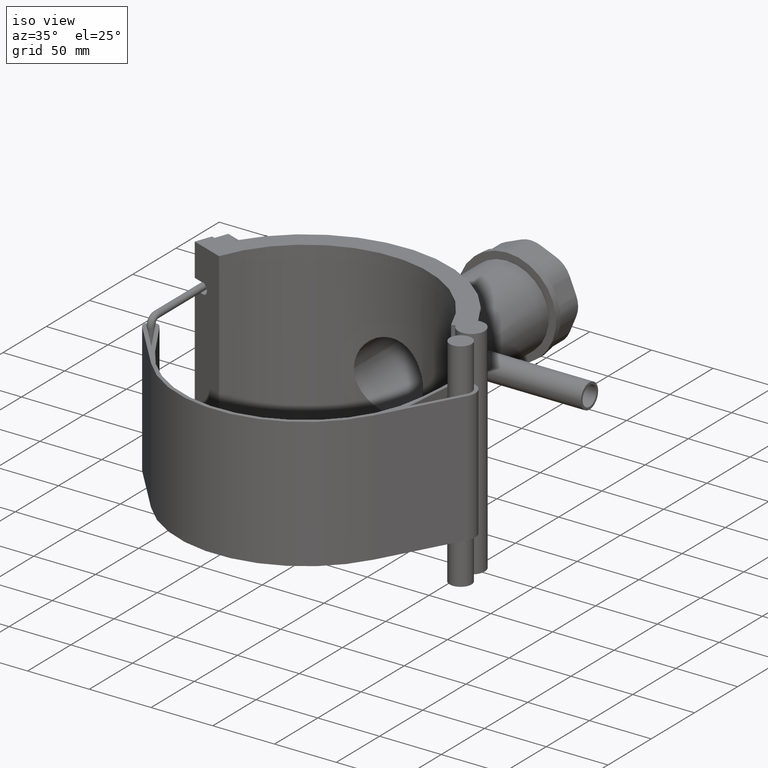
[diagram: clean part render]
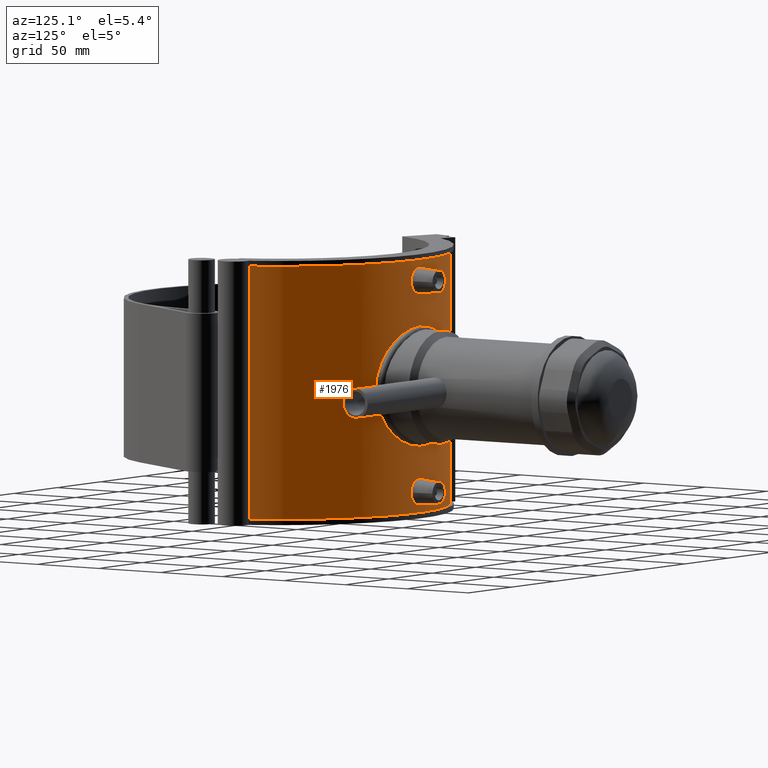
[diagram: tour spotlight — one face highlighted and labeled with its STEP entity id]
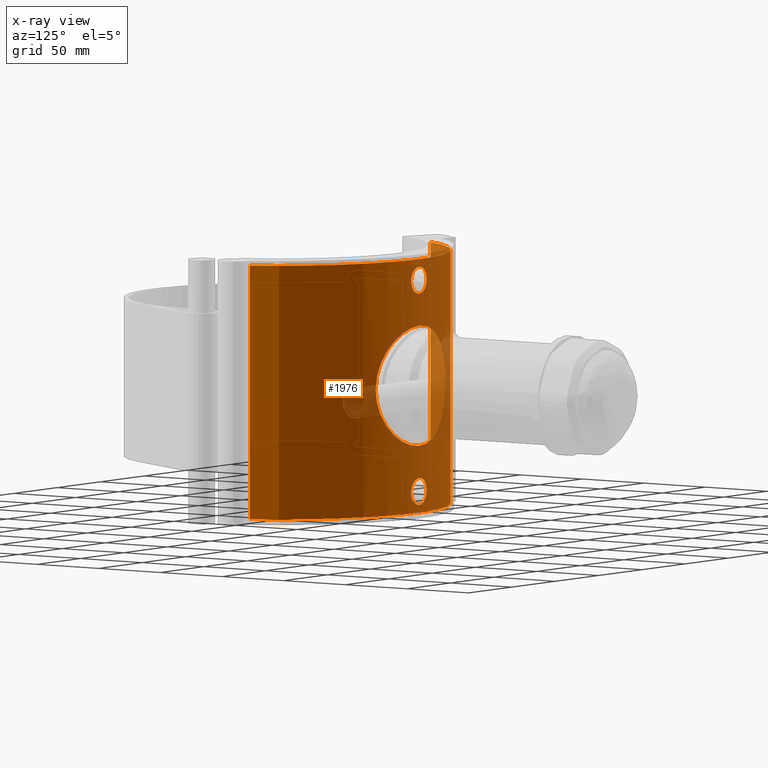
[diagram: x-ray of the same camera — body ghosted, this tour face saturated]
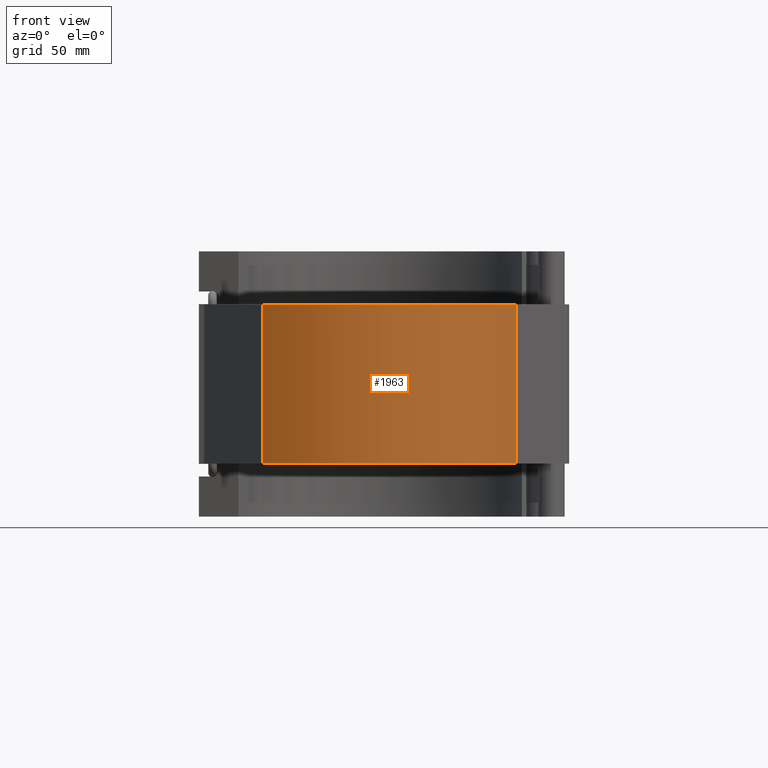
[diagram: tour spotlight — one face highlighted and labeled with its STEP entity id]
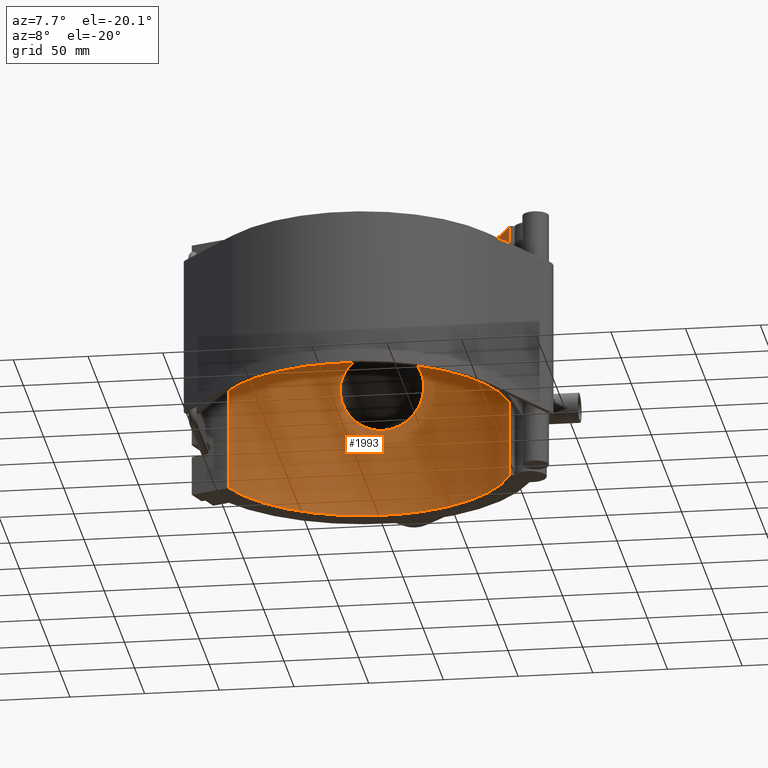
[diagram: tour spotlight — one face highlighted and labeled with its STEP entity id]
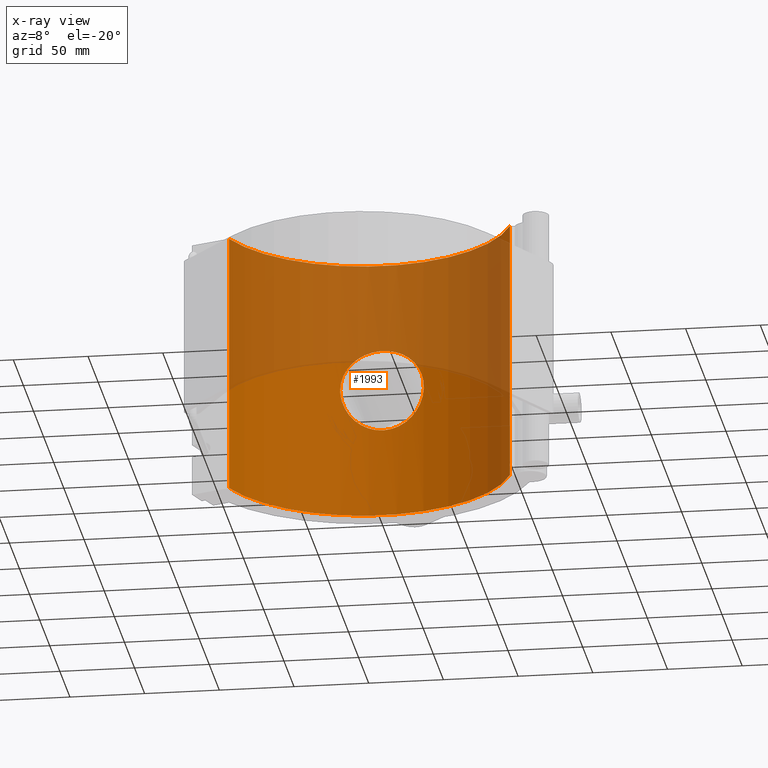
[diagram: x-ray of the same camera — body ghosted, this tour face saturated]
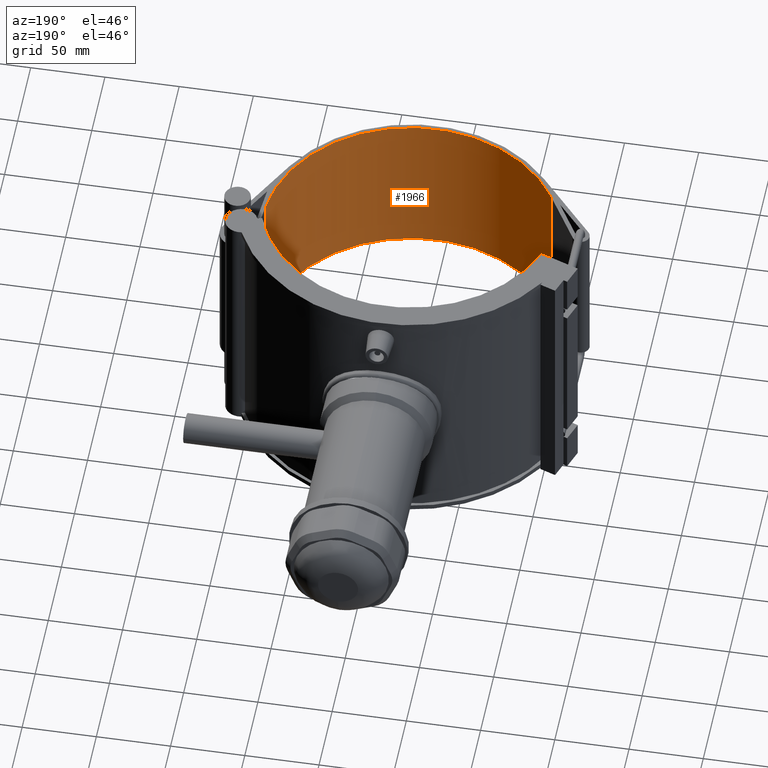
[diagram: tour spotlight — one face highlighted and labeled with its STEP entity id]
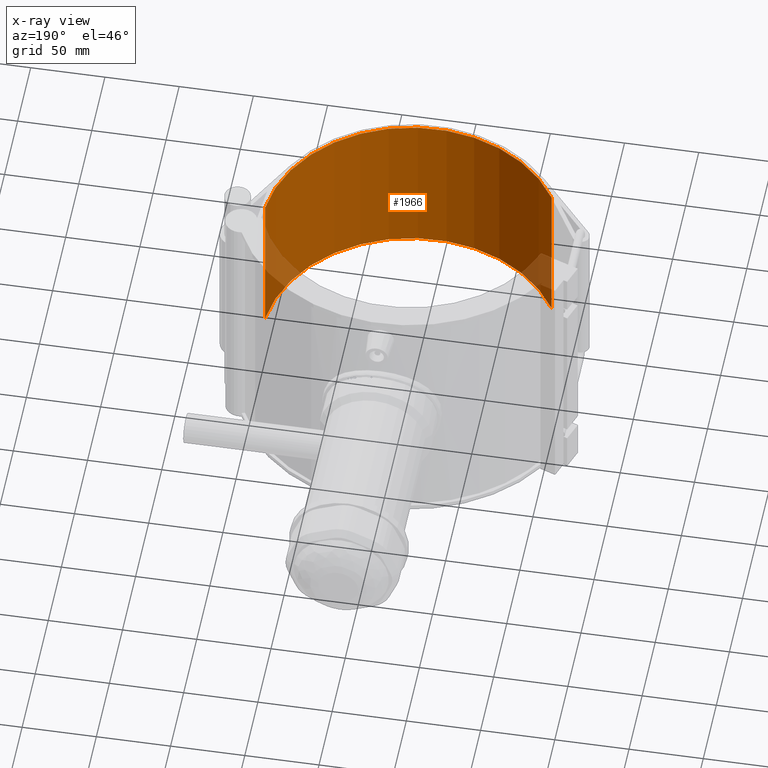
[diagram: x-ray of the same camera — body ghosted, this tour face saturated]
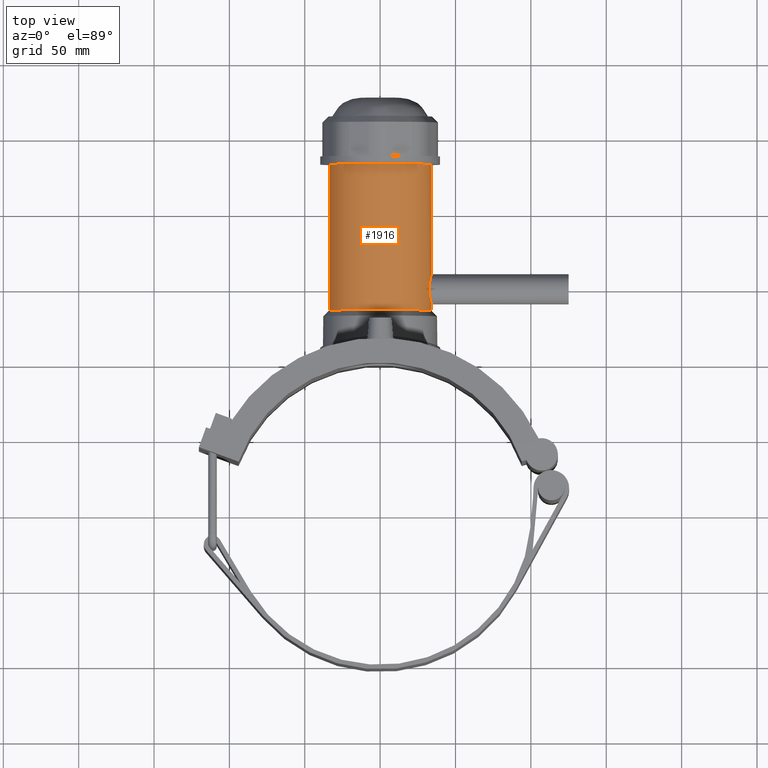
[diagram: tour spotlight — one face highlighted and labeled with its STEP entity id]
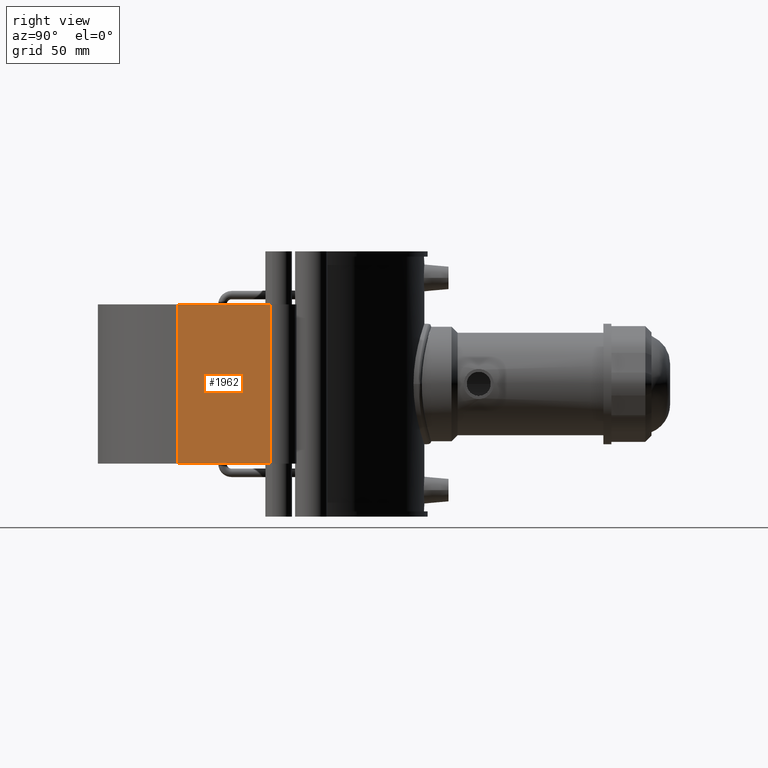
[diagram: tour spotlight — one face highlighted and labeled with its STEP entity id]
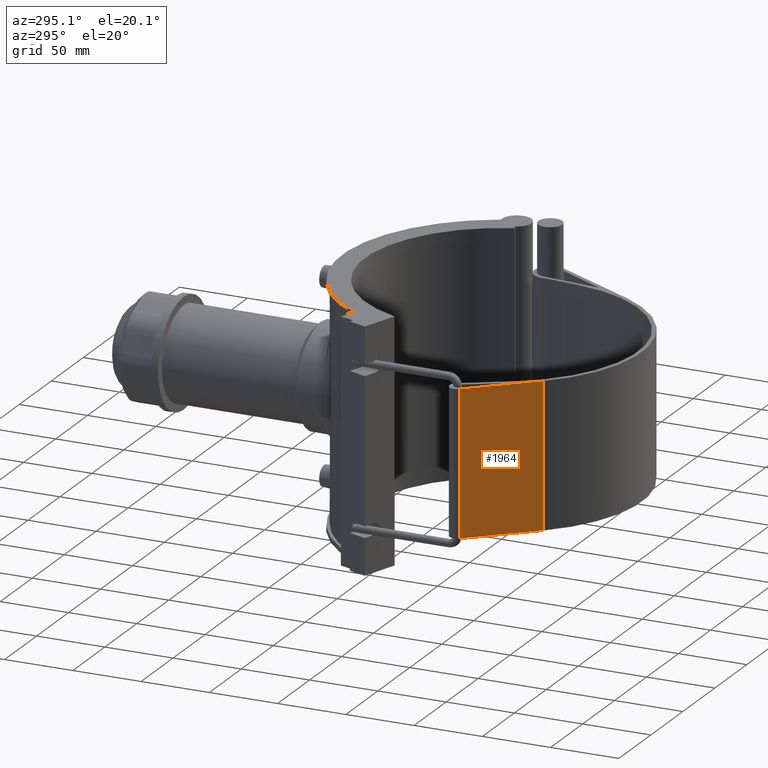
[diagram: tour spotlight — one face highlighted and labeled with its STEP entity id]
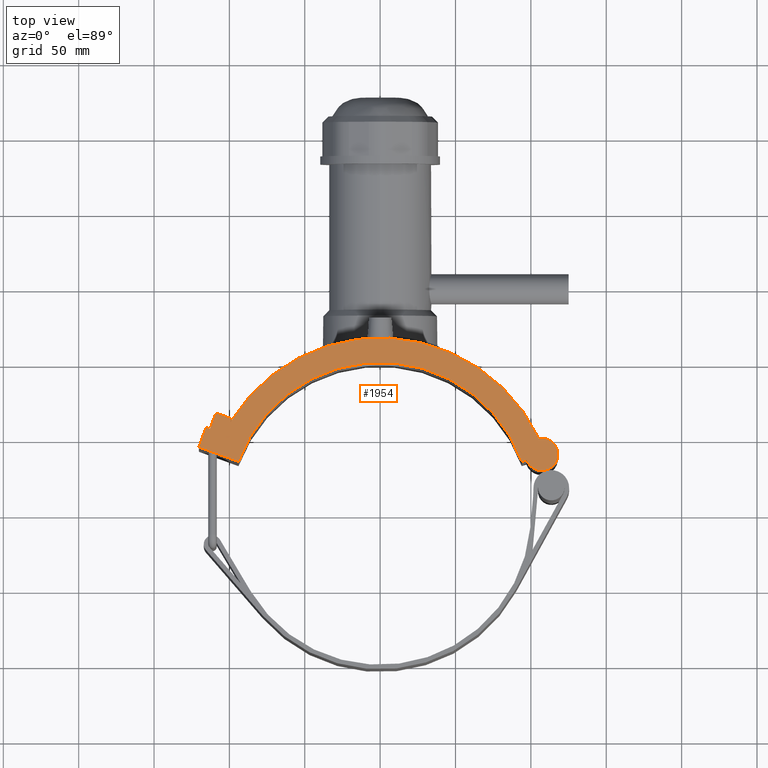
[diagram: tour spotlight — one face highlighted and labeled with its STEP entity id]
A machine part: a face-by-face anatomy tour. The part has 121 B-rep faces; the first image is the clean iso view, then the 8 largest visible faces are spotlighted one at a time (largest first), each with its STEP entity span.

Face 1 — auxiliary view, entity #1976. An x-ray twin of the same camera follows (body ghosted, this face saturated) — the face is partly hidden behind the body. In plain terms, the highlighted cylindrical surface (partial cylindrical patch) has radius 114 mm, axis along (0, 0, 1).
Definition (entity closure, byte-faithful):
#159=LINE('',#3481,#320);
#197=LINE('',#3574,#358);
#320=VECTOR('',#2616,168.96);
#358=VECTOR('',#2720,168.96);
#385=FACE_BOUND('',#701,.T.);
#386=FACE_BOUND('',#702,.T.);
#387=FACE_BOUND('',#703,.T.);
#410=B_SPLINE_CURVE_WITH_KNOTS('',3,(#3587,#3588,#3589,#3590,#3591,#3592,
#3593,#3594,#3595,#3596,#3597,#3598,#3599,#3600,#3601,#3602,#3603,#3604,
#3605,#3606,#3607,#3608,#3609,#3610,#3611,#3612,#3613,#3614,#3615,#3616,
#3617,#3618,#3619,#3620,#3621,#3622,#3623,#3624,#3625,#3626,#3627,#3628,
#3629,#3630,#3631,#3632,#3633,#3634,#3635,#3636,#3637,#3638,#3639,#3640,
#3641,#3642,#3643,#3644,#3645,#3646,#3647,#3648,#3649,#3650,#3651,#3652),
 .UNSPECIFIED.,.T.,.F.,(4,2,2,2,2,2,2,2,2,2,2,2,2,2,2,2,2,2,2,2,2,2,2,2,
2,2,2,2,2,2,2,2,4),(0.,0.760647952222609,1.52129590444522,2.28194385666783,
3.04259180889044,3.8028012971106,4.56301078533076,5.32322027355092,6.08342976177108,
6.84363924999124,7.60384873821141,8.36405822643157,9.12426771465173,9.88491566687434,
10.6455636190969,11.4062115713196,12.1668595235422,12.9275074757648,13.6881554279874,
14.44880338021,15.2094513324326,15.9696608206528,16.7298703088729,17.4900797970931,
18.2502892853133,19.0104987735334,19.7707082617536,20.5309177499737,21.2911272381939,
22.0517751904165,22.8124231426391,23.5730710948617,24.3337190470843),
 .UNSPECIFIED.);
#411=B_SPLINE_CURVE_WITH_KNOTS('',3,(#3654,#3655,#3656,#3657,#3658,#3659,
#3660,#3661,#3662,#3663,#3664,#3665,#3666,#3667,#3668,#3669,#3670,#3671,
#3672,#3673,#3674,#3675,#3676,#3677,#3678,#3679,#3680,#3681,#3682,#3683,
#3684,#3685,#3686,#3687),.UNSPECIFIED.,.T.,.F.,(4,2,2,2,2,2,2,2,2,2,2,2,
2,2,2,2,4),(0.,0.336102137266977,0.672204274533955,1.00804160752224,1.34387894051053,
1.67971627349881,2.0155536064871,2.35165574375408,2.68775788102105,3.02386001828803,
3.35996215555501,3.69579948854329,4.03163682153158,4.36747415451987,4.70331148750815,
5.03941362477513,5.37551576204211),.UNSPECIFIED.);
#412=B_SPLINE_CURVE_WITH_KNOTS('',3,(#3689,#3690,#3691,#3692,#3693,#3694,
#3695,#3696,#3697,#3698,#3699,#3700,#3701,#3702,#3703,#3704,#3705,#3706,
#3707,#3708,#3709,#3710,#3711,#3712,#3713,#3714,#3715,#3716,#3717,#3718,
#3719,#3720,#3721,#3722),.UNSPECIFIED.,.T.,.F.,(4,2,2,2,2,2,2,2,2,2,2,2,
2,2,2,2,4),(0.,0.336102137266977,0.672204274533955,1.00804160752224,1.34387894051053,
1.67971627349881,2.0155536064871,2.35165574375408,2.68775788102105,3.02386001828803,
3.35996215555501,3.69579948854329,4.03163682153158,4.36747415451987,4.70331148750815,
5.03941362477513,5.37551576204211),.UNSPECIFIED.);
#444=CYLINDRICAL_SURFACE('',#2178,114.);
#555=FACE_OUTER_BOUND('',#700,.T.);
#700=EDGE_LOOP('',(#1754,#1755,#1756,#1757));
#701=EDGE_LOOP('',(#1758));
#702=EDGE_LOOP('',(#1759));
#703=EDGE_LOOP('',(#1760));
#804=CIRCLE('',#2177,114.);
#805=CIRCLE('',#2179,114.);
#956=VERTEX_POINT('',#3477);
#958=VERTEX_POINT('',#3480);
#979=VERTEX_POINT('',#3571);
#980=VERTEX_POINT('',#3573);
#982=VERTEX_POINT('',#3586);
#983=VERTEX_POINT('',#3653);
#984=VERTEX_POINT('',#3688);
#1195=EDGE_CURVE('',#958,#956,#159,.T.);
#1242=EDGE_CURVE('',#980,#979,#197,.T.);
#1247=EDGE_CURVE('',#956,#980,#804,.T.);
#1248=EDGE_CURVE('',#979,#958,#805,.T.);
#1249=EDGE_CURVE('',#982,#982,#410,.T.);
#1250=EDGE_CURVE('',#983,#983,#411,.T.);
#1251=EDGE_CURVE('',#984,#984,#412,.T.);
#1754=ORIENTED_EDGE('',*,*,#1195,.T.);
#1755=ORIENTED_EDGE('',*,*,#1247,.T.);
#1756=ORIENTED_EDGE('',*,*,#1242,.T.);
#1757=ORIENTED_EDGE('',*,*,#1248,.T.);
#1758=ORIENTED_EDGE('',*,*,#1249,.T.);
#1759=ORIENTED_EDGE('',*,*,#1250,.T.);
#1760=ORIENTED_EDGE('',*,*,#1251,.T.);
#1976=ADVANCED_FACE('',(#555,#385,#386,#387),#444,.T.);
#2177=AXIS2_PLACEMENT_3D('',#3583,#2733,#2734);
#2178=AXIS2_PLACEMENT_3D('',#3584,#2735,#2736);
#2179=AXIS2_PLACEMENT_3D('',#3585,#2737,#2738);
#2616=DIRECTION('',(0.,0.,1.));
#2720=DIRECTION('',(0.,0.,-1.));
#2733=DIRECTION('center_axis',(0.,0.,-1.));
#2734=DIRECTION('ref_axis',(1.,0.,0.));
#2735=DIRECTION('center_axis',(0.,0.,1.));
#2736=DIRECTION('ref_axis',(1.,0.,0.));
#2737=DIRECTION('center_axis',(0.,0.,1.));
#2738=DIRECTION('ref_axis',(1.,0.,0.));
#3477=CARTESIAN_POINT('',(-101.525801895629,51.8508587146788,84.48));
#3480=CARTESIAN_POINT('',(-101.525801895629,51.8508587146788,-84.48));
#3481=CARTESIAN_POINT('',(-101.525801895629,51.8508587146788,0.));
#3571=CARTESIAN_POINT('',(102.967784249054,48.9247933755505,-84.48));
#3573=CARTESIAN_POINT('',(102.967784249054,48.9247933755505,84.48));
#3574=CARTESIAN_POINT('',(102.967784249054,48.9247933755505,0.));
#3583=CARTESIAN_POINT('Origin',(0.,0.,84.48));
#3584=CARTESIAN_POINT('Origin',(0.,0.,0.));
#3585=CARTESIAN_POINT('Origin',(0.,0.,-84.48));
#3586=CARTESIAN_POINT('',(40.,106.75204916066,1.88737914186277E-14));
#3587=CARTESIAN_POINT('Ctrl Pts',(40.,106.75204916066,1.11022302462516E-15));
#3588=CARTESIAN_POINT('Ctrl Pts',(40.,106.75204916066,2.53549317407536));
#3589=CARTESIAN_POINT('Ctrl Pts',(39.7550475114249,106.84490201709,5.14984591547766));
#3590=CARTESIAN_POINT('Ctrl Pts',(38.7319004507554,107.220039062905,10.3355988499144));
#3591=CARTESIAN_POINT('Ctrl Pts',(37.9540105848973,107.50192514406,12.9070879479991));
#3592=CARTESIAN_POINT('Ctrl Pts',(35.9066696708571,108.202965649266,17.8272562317298));
#3593=CARTESIAN_POINT('Ctrl Pts',(34.6355950394345,108.62190697547,20.1802659544724));
#3594=CARTESIAN_POINT('Ctrl Pts',(31.7066118951435,109.51271104526,24.5266862906721));
#3595=CARTESIAN_POINT('Ctrl Pts',(30.0484387987044,109.983670443605,26.5201036962194));
#3596=CARTESIAN_POINT('Ctrl Pts',(26.5211206239101,110.887072181654,30.0474218710137));
#3597=CARTESIAN_POINT('Ctrl Pts',(24.528186355914,111.35205607136,31.7054707704956));
#3598=CARTESIAN_POINT('Ctrl Pts',(20.1814991468893,112.221296594472,34.6348941835836));
#3599=CARTESIAN_POINT('Ctrl Pts',(17.8277385696762,112.624773108677,35.90648879335));
#3600=CARTESIAN_POINT('Ctrl Pts',(12.9060682572406,113.294312224824,37.9544150592687));
#3601=CARTESIAN_POINT('Ctrl Pts',(10.333850272777,113.560408092164,38.7323733018653));
#3602=CARTESIAN_POINT('Ctrl Pts',(5.14786790468786,113.913362708501,39.7553098227726));
#3603=CARTESIAN_POINT('Ctrl Pts',(2.53403162740054,114.,40.));
#3604=CARTESIAN_POINT('Ctrl Pts',(-2.53403162740054,114.,40.));
#3605=CARTESIAN_POINT('Ctrl Pts',(-5.14786790468785,113.913362708501,39.7553098227726));
#3606=CARTESIAN_POINT('Ctrl Pts',(-10.333850272777,113.560408092164,38.7323733018653));
#3607=CARTESIAN_POINT('Ctrl Pts',(-12.9060682572405,113.294312224824,37.9544150592687));
#3608=CARTESIAN_POINT('Ctrl Pts',(-17.8277385696762,112.624773108677,35.90648879335));
#3609=CARTESIAN_POINT('Ctrl Pts',(-20.1814991468893,112.221296594472,34.6348941835836));
#3610=CARTESIAN_POINT('Ctrl Pts',(-24.528186355914,111.35205607136,31.7054707704956));
#3611=CARTESIAN_POINT('Ctrl Pts',(-26.5211206239101,110.887072181654,30.0474218710137));
#3612=CARTESIAN_POINT('Ctrl Pts',(-30.0484387987044,109.983670443605,26.5201036962194));
#3613=CARTESIAN_POINT('Ctrl Pts',(-31.7066118951435,109.51271104526,24.5266862906721));
#3614=CARTESIAN_POINT('Ctrl Pts',(-34.6355950394345,108.62190697547,20.1802659544724));
#3615=CARTESIAN_POINT('Ctrl Pts',(-35.9066696708571,108.202965649266,17.8272562317298));
#3616=CARTESIAN_POINT('Ctrl Pts',(-37.9540105848973,107.50192514406,12.9070879479991));
#3617=CARTESIAN_POINT('Ctrl Pts',(-38.7319004507554,107.220039062905,10.3355988499144));
#3618=CARTESIAN_POINT('Ctrl Pts',(-39.7550475114249,106.84490201709,5.14984591547766));
#3619=CARTESIAN_POINT('Ctrl Pts',(-40.,106.75204916066,2.53549317407536));
#3620=CARTESIAN_POINT('Ctrl Pts',(-40.,106.75204916066,-2.53549317407536));
#3621=CARTESIAN_POINT('Ctrl Pts',(-39.7550475114249,106.84490201709,-5.14984591547766));
#3622=CARTESIAN_POINT('Ctrl Pts',(-38.7319004507554,107.220039062905,-10.3355988499144));
#3623=CARTESIAN_POINT('Ctrl Pts',(-37.9540105848973,107.50192514406,-12.9070879479991));
#3624=CARTESIAN_POINT('Ctrl Pts',(-35.9066696708571,108.202965649266,-17.8272562317298));
#3625=CARTESIAN_POINT('Ctrl Pts',(-34.6355950394345,108.62190697547,-20.1802659544724));
#3626=CARTESIAN_POINT('Ctrl Pts',(-31.7066118951435,109.51271104526,-24.5266862906721));
#3627=CARTESIAN_POINT('Ctrl Pts',(-30.0484387987044,109.983670443605,-26.5201036962194));
#3628=CARTESIAN_POINT('Ctrl Pts',(-26.5211206239101,110.887072181654,-30.0474218710137));
#3629=CARTESIAN_POINT('Ctrl Pts',(-24.528186355914,111.35205607136,-31.7054707704956));
#3630=CARTESIAN_POINT('Ctrl Pts',(-20.1814991468894,112.221296594472,-34.6348941835836));
#3631=CARTESIAN_POINT('Ctrl Pts',(-17.8277385696762,112.624773108677,-35.90648879335));
#3632=CARTESIAN_POINT('Ctrl Pts',(-12.9060682572406,113.294312224824,-37.9544150592687));
#3633=CARTESIAN_POINT('Ctrl Pts',(-10.333850272777,113.560408092164,-38.7323733018653));
#3634=CARTESIAN_POINT('Ctrl Pts',(-5.14786790468787,113.913362708501,-39.7553098227725));
#3635=CARTESIAN_POINT('Ctrl Pts',(-2.53403162740055,114.,-40.));
#3636=CARTESIAN_POINT('Ctrl Pts',(2.53403162740053,114.,-40.));
#3637=CARTESIAN_POINT('Ctrl Pts',(5.14786790468786,113.913362708501,-39.7553098227725));
#3638=CARTESIAN_POINT('Ctrl Pts',(10.333850272777,113.560408092164,-38.7323733018653));
#3639=CARTESIAN_POINT('Ctrl Pts',(12.9060682572406,113.294312224824,-37.9544150592687));
#3640=CARTESIAN_POINT('Ctrl Pts',(17.8277385696762,112.624773108677,-35.90648879335));
#3641=CARTESIAN_POINT('Ctrl Pts',(20.1814991468894,112.221296594472,-34.6348941835836));
#3642=CARTESIAN_POINT('Ctrl Pts',(24.528186355914,111.35205607136,-31.7054707704956));
#3643=CARTESIAN_POINT('Ctrl Pts',(26.5211206239101,110.887072181654,-30.0474218710137));
#3644=CARTESIAN_POINT('Ctrl Pts',(30.0484387987044,109.983670443605,-26.5201036962194));
#3645=CARTESIAN_POINT('Ctrl Pts',(31.7066118951435,109.51271104526,-24.5266862906722));
#3646=CARTESIAN_POINT('Ctrl Pts',(34.6355950394345,108.62190697547,-20.1802659544724));
#3647=CARTESIAN_POINT('Ctrl Pts',(35.9066696708571,108.202965649266,-17.8272562317298));
#3648=CARTESIAN_POINT('Ctrl Pts',(37.9540105848973,107.50192514406,-12.9070879479991));
#3649=CARTESIAN_POINT('Ctrl Pts',(38.7319004507554,107.220039062905,-10.3355988499144));
#3650=CARTESIAN_POINT('Ctrl Pts',(39.7550475114249,106.84490201709,-5.14984591547766));
#3651=CARTESIAN_POINT('Ctrl Pts',(40.,106.75204916066,-2.53549317407536));
#3652=CARTESIAN_POINT('Ctrl Pts',(40.,106.75204916066,5.55111512312578E-16));
#3653=CARTESIAN_POINT('',(8.93046881410949,113.64966663726,-70.4));
#3654=CARTESIAN_POINT('Ctrl Pts',(8.93046881410949,113.64966663726,-70.4));
#3655=CARTESIAN_POINT('Ctrl Pts',(8.93046881410949,113.64966663726,-69.2796595424434));
#3656=CARTESIAN_POINT('Ctrl Pts',(8.70520683363362,113.668066985588,-68.0854140294805));
#3657=CARTESIAN_POINT('Ctrl Pts',(7.79092480084932,113.734390435385,-65.8904724180335));
#3658=CARTESIAN_POINT('Ctrl Pts',(7.10195358693505,113.781344108194,-64.8897267912334));
#3659=CARTESIAN_POINT('Ctrl Pts',(5.51503165010171,113.869291041196,-63.311550554805));
#3660=CARTESIAN_POINT('Ctrl Pts',(4.51143713823414,113.916002250275,-62.6284379526399));
#3661=CARTESIAN_POINT('Ctrl Pts',(2.31366496396978,113.981821305138,-61.7227511867393));
#3662=CARTESIAN_POINT('Ctrl Pts',(1.11945777662762,114.,-61.5001813835852));
#3663=CARTESIAN_POINT('Ctrl Pts',(-1.11945777662762,114.,-61.5001813835852));
#3664=CARTESIAN_POINT('Ctrl Pts',(-2.31366496396977,113.981821305138,-61.7227511867393));
#3665=CARTESIAN_POINT('Ctrl Pts',(-4.51143713823413,113.916002250275,-62.6284379526399));
#3666=CARTESIAN_POINT('Ctrl Pts',(-5.5150316501017,113.869291041196,-63.311550554805));
#3667=CARTESIAN_POINT('Ctrl Pts',(-7.10195358693504,113.781344108194,-64.8897267912334));
#3668=CARTESIAN_POINT('Ctrl Pts',(-7.79092480084932,113.734390435385,-65.8904724180335));
#3669=CARTESIAN_POINT('Ctrl Pts',(-8.70520683363362,113.668066985588,-68.0854140294805));
#3670=CARTESIAN_POINT('Ctrl Pts',(-8.93046881410949,113.649666637259,-69.2796595424434));
#3671=CARTESIAN_POINT('Ctrl Pts',(-8.93046881410949,113.649666637259,-71.5203404575566));
#3672=CARTESIAN_POINT('Ctrl Pts',(-8.70520683363362,113.668066985588,-72.7145859705195));
#3673=CARTESIAN_POINT('Ctrl Pts',(-7.79092480084932,113.734390435385,-74.9095275819665));
#3674=CARTESIAN_POINT('Ctrl Pts',(-7.10195358693505,113.781344108194,-75.9102732087666));
#3675=CARTESIAN_POINT('Ctrl Pts',(-5.51503165010171,113.869291041196,-77.4884494451951));
#3676=CARTESIAN_POINT('Ctrl Pts',(-4.51143713823414,113.916002250275,-78.1715620473602));
#3677=CARTESIAN_POINT('Ctrl Pts',(-2.31366496396977,113.981821305138,-79.0772488132608));
#3678=CARTESIAN_POINT('Ctrl Pts',(-1.11945777662762,114.,-79.2998186164148));
#3679=CARTESIAN_POINT('Ctrl Pts',(1.11945777662762,114.,-79.2998186164148));
#3680=CARTESIAN_POINT('Ctrl Pts',(2.31366496396977,113.981821305138,-79.0772488132608));
#3681=CARTESIAN_POINT('Ctrl Pts',(4.51143713823413,113.916002250275,-78.1715620473602));
#3682=CARTESIAN_POINT('Ctrl Pts',(5.5150316501017,113.869291041196,-77.4884494451951));
#3683=CARTESIAN_POINT('Ctrl Pts',(7.10195358693505,113.781344108194,-75.9102732087666));
#3684=CARTESIAN_POINT('Ctrl Pts',(7.79092480084932,113.734390435385,-74.9095275819665));
#3685=CARTESIAN_POINT('Ctrl Pts',(8.70520683363362,113.668066985588,-72.7145859705195));
#3686=CARTESIAN_POINT('Ctrl Pts',(8.93046881410949,113.64966663726,-71.5203404575566));
#3687=CARTESIAN_POINT('Ctrl Pts',(8.93046881410949,113.64966663726,-70.4));
#3688=CARTESIAN_POINT('',(8.93046881410949,113.64966663726,70.4));
#3689=CARTESIAN_POINT('Ctrl Pts',(-8.93046881410949,113.64966663726,70.4));
#3690=CARTESIAN_POINT('Ctrl Pts',(-8.93046881410949,113.64966663726,69.2796595424434));
#3691=CARTESIAN_POINT('Ctrl Pts',(-8.70520683363362,113.668066985588,68.0854140294805));
#3692=CARTESIAN_POINT('Ctrl Pts',(-7.79092480084932,113.734390435385,65.8904724180335));
#3693=CARTESIAN_POINT('Ctrl Pts',(-7.10195358693504,113.781344108194,64.8897267912334));
#3694=CARTESIAN_POINT('Ctrl Pts',(-5.5150316501017,113.869291041196,63.311550554805));
#3695=CARTESIAN_POINT('Ctrl Pts',(-4.51143713823414,113.916002250275,62.6284379526399));
#3696=CARTESIAN_POINT('Ctrl Pts',(-2.31366496396978,113.981821305138,61.7227511867393));
#3697=CARTESIAN_POINT('Ctrl Pts',(-1.11945777662762,114.,61.5001813835852));
#3698=CARTESIAN_POINT('Ctrl Pts',(1.11945777662762,114.,61.5001813835852));
#3699=CARTESIAN_POINT('Ctrl Pts',(2.31366496396977,113.981821305138,61.7227511867393));
#3700=CARTESIAN_POINT('Ctrl Pts',(4.51143713823413,113.916002250275,62.6284379526399));
#3701=CARTESIAN_POINT('Ctrl Pts',(5.5150316501017,113.869291041196,63.311550554805));
#3702=CARTESIAN_POINT('Ctrl Pts',(7.10195358693504,113.781344108194,64.8897267912334));
#3703=CARTESIAN_POINT('Ctrl Pts',(7.79092480084932,113.734390435385,65.8904724180335));
#3704=CARTESIAN_POINT('Ctrl Pts',(8.70520683363362,113.668066985588,68.0854140294805));
#3705=CARTESIAN_POINT('Ctrl Pts',(8.93046881410949,113.649666637259,69.2796595424434));
#3706=CARTESIAN_POINT('Ctrl Pts',(8.93046881410949,113.649666637259,71.5203404575566));
#3707=CARTESIAN_POINT('Ctrl Pts',(8.70520683363362,113.668066985588,72.7145859705195));
#3708=CARTESIAN_POINT('Ctrl Pts',(7.79092480084932,113.734390435385,74.9095275819665));
#3709=CARTESIAN_POINT('Ctrl Pts',(7.10195358693505,113.781344108194,75.9102732087666));
#3710=CARTESIAN_POINT('Ctrl Pts',(5.51503165010171,113.869291041196,77.4884494451951));
#3711=CARTESIAN_POINT('Ctrl Pts',(4.51143713823413,113.916002250275,78.1715620473602));
#3712=CARTESIAN_POINT('Ctrl Pts',(2.31366496396977,113.981821305138,79.0772488132608));
#3713=CARTESIAN_POINT('Ctrl Pts',(1.11945777662762,114.,79.2998186164148));
#3714=CARTESIAN_POINT('Ctrl Pts',(-1.11945777662762,114.,79.2998186164148));
#3715=CARTESIAN_POINT('Ctrl Pts',(-2.31366496396977,113.981821305138,79.0772488132608));
#3716=CARTESIAN_POINT('Ctrl Pts',(-4.51143713823413,113.916002250275,78.1715620473602));
#3717=CARTESIAN_POINT('Ctrl Pts',(-5.5150316501017,113.869291041196,77.4884494451951));
#3718=CARTESIAN_POINT('Ctrl Pts',(-7.10195358693504,113.781344108194,75.9102732087667));
#3719=CARTESIAN_POINT('Ctrl Pts',(-7.79092480084932,113.734390435385,74.9095275819665));
#3720=CARTESIAN_POINT('Ctrl Pts',(-8.70520683363362,113.668066985588,72.7145859705195));
#3721=CARTESIAN_POINT('Ctrl Pts',(-8.93046881410949,113.64966663726,71.5203404575566));
#3722=CARTESIAN_POINT('Ctrl Pts',(-8.93046881410949,113.64966663726,70.4));

Face 2 — front view, entity #1963. In plain terms, the highlighted cylindrical surface (partial cylindrical patch) has radius 103 mm, axis along (0, 0, 1).
Definition (entity closure, byte-faithful):
#190=LINE('',#3549,#351);
#191=LINE('',#3551,#352);
#351=VECTOR('',#2687,105.6);
#352=VECTOR('',#2690,105.6);
#437=CYLINDRICAL_SURFACE('',#2159,103.);
#542=FACE_OUTER_BOUND('',#684,.T.);
#684=EDGE_LOOP('',(#1699,#1700,#1701,#1702));
#769=CIRCLE('',#2082,103.);
#777=CIRCLE('',#2091,103.);
#891=VERTEX_POINT('',#3283);
#892=VERTEX_POINT('',#3285);
#906=VERTEX_POINT('',#3315);
#907=VERTEX_POINT('',#3317);
#1105=EDGE_CURVE('',#891,#892,#769,.T.);
#1121=EDGE_CURVE('',#906,#907,#777,.T.);
#1232=EDGE_CURVE('',#891,#907,#190,.T.);
#1233=EDGE_CURVE('',#892,#906,#191,.T.);
#1699=ORIENTED_EDGE('',*,*,#1232,.T.);
#1700=ORIENTED_EDGE('',*,*,#1121,.F.);
#1701=ORIENTED_EDGE('',*,*,#1233,.F.);
#1702=ORIENTED_EDGE('',*,*,#1105,.F.);
#1963=ADVANCED_FACE('',(#542),#437,.T.);
#2082=AXIS2_PLACEMENT_3D('',#3286,#2446,#2447);
#2091=AXIS2_PLACEMENT_3D('',#3318,#2472,#2473);
#2159=AXIS2_PLACEMENT_3D('',#3550,#2688,#2689);
#2446=DIRECTION('center_axis',(0.,0.,-1.));
#2447=DIRECTION('ref_axis',(0.988586012507429,0.150657545030644,0.));
#2472=DIRECTION('center_axis',(0.,0.,1.));
#2473=DIRECTION('ref_axis',(0.988586012507429,0.150657545030644,0.));
#2687=DIRECTION('',(0.,0.,1.));
#2688=DIRECTION('center_axis',(0.,0.,1.));
#2689=DIRECTION('ref_axis',(0.988586012507429,0.150657545030644,0.));
#2690=DIRECTION('',(0.,0.,1.));
#3283=CARTESIAN_POINT('',(90.2578954211151,-49.6237071786365,-52.8));
#3285=CARTESIAN_POINT('',(-77.8991145930519,-67.3849237264432,-52.8));
#3286=CARTESIAN_POINT('Origin',(0.,0.,-52.8));
#3315=CARTESIAN_POINT('',(-77.8991145930519,-67.3849237264432,52.8));
#3317=CARTESIAN_POINT('',(90.2578954211151,-49.6237071786365,52.8));
#3318=CARTESIAN_POINT('Origin',(0.,0.,52.8));
#3549=CARTESIAN_POINT('',(90.2578954211151,-49.6237071786365,0.));
#3550=CARTESIAN_POINT('Origin',(0.,0.,0.));
#3551=CARTESIAN_POINT('',(-77.8991145930519,-67.3849237264432,0.));

Face 3 — auxiliary view, entity #1993. An x-ray twin of the same camera follows (body ghosted, this face saturated) — the face is partly hidden behind the body. In plain terms, the highlighted cylindrical surface (partial cylindrical patch) has radius 100 mm, axis along (0, 0, 1).
Definition (entity closure, byte-faithful):
#138=LINE('',#3427,#299);
#199=LINE('',#3579,#360);
#299=VECTOR('',#2559,176.);
#360=VECTOR('',#2726,176.);
#399=FACE_BOUND('',#732,.T.);
#400=B_SPLINE_CURVE_WITH_KNOTS('',3,(#2801,#2802,#2803,#2804,#2805,#2806,
#2807,#2808,#2809,#2810,#2811,#2812,#2813,#2814,#2815,#2816,#2817,#2818,
#2819,#2820,#2821,#2822,#2823,#2824,#2825,#2826,#2827,#2828,#2829,#2830,
#2831,#2832,#2833,#2834,#2835,#2836,#2837,#2838,#2839,#2840,#2841,#2842,
#2843,#2844,#2845,#2846,#2847,#2848,#2849,#2850,#2851,#2852,#2853,#2854,
#2855,#2856,#2857,#2858,#2859,#2860,#2861,#2862,#2863,#2864,#2865,#2866),
 .UNSPECIFIED.,.T.,.F.,(4,2,2,2,2,2,2,2,2,2,2,2,2,2,2,2,2,2,2,2,2,2,2,2,
2,2,2,2,2,2,2,2,4),(0.,0.530492583423776,1.06098516684755,1.59147775027133,
2.1219703336951,2.65234436733511,3.18271840097511,3.71309243461512,4.24346646825513,
4.77384050189513,5.30421453553514,5.83458856917514,6.36496260281515,6.89545518623892,
7.4259477696627,7.95644035308648,8.48693293651025,9.01742551993403,9.5479181033578,
10.0784106867816,10.6089032702054,11.1392773038454,11.6696513374854,12.2000253711254,
12.7303994047654,13.2607734384054,13.7911474720454,14.3215215056854,14.8518955393254,
15.3823881227492,15.912880706173,16.4433732895967,16.9738658730205),
 .UNSPECIFIED.);
#451=CYLINDRICAL_SURFACE('',#2207,100.);
#572=FACE_OUTER_BOUND('',#731,.T.);
#731=EDGE_LOOP('',(#1800,#1801,#1802,#1803));
#732=EDGE_LOOP('',(#1804));
#793=CIRCLE('',#2145,100.);
#798=CIRCLE('',#2151,100.);
#819=VERTEX_POINT('',#2800);
#942=VERTEX_POINT('',#3424);
#943=VERTEX_POINT('',#3426);
#970=VERTEX_POINT('',#3519);
#975=VERTEX_POINT('',#3531);
#997=EDGE_CURVE('',#819,#819,#400,.T.);
#1168=EDGE_CURVE('',#943,#942,#138,.T.);
#1216=EDGE_CURVE('',#943,#970,#793,.T.);
#1223=EDGE_CURVE('',#975,#942,#798,.T.);
#1245=EDGE_CURVE('',#975,#970,#199,.T.);
#1800=ORIENTED_EDGE('',*,*,#1168,.T.);
#1801=ORIENTED_EDGE('',*,*,#1223,.F.);
#1802=ORIENTED_EDGE('',*,*,#1245,.T.);
#1803=ORIENTED_EDGE('',*,*,#1216,.F.);
#1804=ORIENTED_EDGE('',*,*,#997,.T.);
#1993=ADVANCED_FACE('',(#572,#399),#451,.F.);
#2145=AXIS2_PLACEMENT_3D('',#3520,#2649,#2650);
#2151=AXIS2_PLACEMENT_3D('',#3533,#2663,#2664);
#2207=AXIS2_PLACEMENT_3D('',#3887,#2793,#2794);
#2559=DIRECTION('',(0.,0.,-1.));
#2649=DIRECTION('center_axis',(0.,0.,-1.));
#2650=DIRECTION('ref_axis',(-1.,0.,0.));
#2663=DIRECTION('center_axis',(0.,0.,1.));
#2664=DIRECTION('ref_axis',(-1.,0.,0.));
#2726=DIRECTION('',(0.,0.,1.));
#2793=DIRECTION('center_axis',(0.,0.,1.));
#2794=DIRECTION('ref_axis',(-1.,0.,0.));
#2800=CARTESIAN_POINT('',(-28.,96.,3.94129173741931E-14));
#2801=CARTESIAN_POINT('Ctrl Pts',(-28.,96.,3.94129173741931E-14));
#2802=CARTESIAN_POINT('Ctrl Pts',(-28.,96.,1.76830861141263));
#2803=CARTESIAN_POINT('Ctrl Pts',(-27.8297876242777,96.0501978953549,3.59377193935695));
#2804=CARTESIAN_POINT('Ctrl Pts',(-27.1164585301269,96.2540143142053,7.21872238617078));
#2805=CARTESIAN_POINT('Ctrl Pts',(-26.5735303686047,96.40745078722,9.01825684093428));
#2806=CARTESIAN_POINT('Ctrl Pts',(-25.1419537487875,96.7906566116477,12.4644967652472));
#2807=CARTESIAN_POINT('Ctrl Pts',(-24.252168578379,97.0203357668782,14.1141279582952));
#2808=CARTESIAN_POINT('Ctrl Pts',(-22.1996770377959,97.5104485292095,17.162477337853));
#2809=CARTESIAN_POINT('Ctrl Pts',(-21.0368110545167,97.770380457094,18.56116869193));
#2810=CARTESIAN_POINT('Ctrl Pts',(-18.5614453092437,98.2703757468892,21.036534437203));
#2811=CARTESIAN_POINT('Ctrl Pts',(-17.1628836633428,98.5282542931996,22.1993683866799));
#2812=CARTESIAN_POINT('Ctrl Pts',(-14.1144568129821,99.0109265614553,24.2519822150845));
#2813=CARTESIAN_POINT('Ctrl Pts',(-12.4646185198509,99.2352648833692,25.1419091205725));
#2814=CARTESIAN_POINT('Ctrl Pts',(-9.01797001780083,99.6076338827722,26.5736435664283));
#2815=CARTESIAN_POINT('Ctrl Pts',(-7.21824039950206,99.7556605019272,27.1165883314968));
#2816=CARTESIAN_POINT('Ctrl Pts',(-3.59323359187856,99.951905779708,27.829858597615));
#2817=CARTESIAN_POINT('Ctrl Pts',(-1.76791344546669,100.,28.));
#2818=CARTESIAN_POINT('Ctrl Pts',(1.76791344546668,100.,28.));
#2819=CARTESIAN_POINT('Ctrl Pts',(3.59323359187855,99.951905779708,27.829858597615));
#2820=CARTESIAN_POINT('Ctrl Pts',(7.21824039950204,99.7556605019272,27.1165883314968));
#2821=CARTESIAN_POINT('Ctrl Pts',(9.01797001780081,99.6076338827722,26.5736435664283));
#2822=CARTESIAN_POINT('Ctrl Pts',(12.4646185198509,99.2352648833692,25.1419091205725));
#2823=CARTESIAN_POINT('Ctrl Pts',(14.114456812982,99.0109265614553,24.2519822150846));
#2824=CARTESIAN_POINT('Ctrl Pts',(17.1628836633428,98.5282542931996,22.19936838668));
#2825=CARTESIAN_POINT('Ctrl Pts',(18.5614453092437,98.2703757468892,21.036534437203));
#2826=CARTESIAN_POINT('Ctrl Pts',(21.0368110545167,97.770380457094,18.56116869193));
#2827=CARTESIAN_POINT('Ctrl Pts',(22.1996770377959,97.5104485292095,17.162477337853));
#2828=CARTESIAN_POINT('Ctrl Pts',(24.252168578379,97.0203357668782,14.1141279582952));
#2829=CARTESIAN_POINT('Ctrl Pts',(25.1419537487875,96.7906566116477,12.4644967652472));
#2830=CARTESIAN_POINT('Ctrl Pts',(26.5735303686047,96.40745078722,9.01825684093429));
#2831=CARTESIAN_POINT('Ctrl Pts',(27.1164585301269,96.2540143142053,7.21872238617078));
#2832=CARTESIAN_POINT('Ctrl Pts',(27.8297876242777,96.0501978953549,3.59377193935695));
#2833=CARTESIAN_POINT('Ctrl Pts',(28.,96.,1.76830861141263));
#2834=CARTESIAN_POINT('Ctrl Pts',(28.,96.,-1.76830861141255));
#2835=CARTESIAN_POINT('Ctrl Pts',(27.8297876242777,96.0501978953549,-3.59377193935687));
#2836=CARTESIAN_POINT('Ctrl Pts',(27.1164585301269,96.2540143142053,-7.2187223861707));
#2837=CARTESIAN_POINT('Ctrl Pts',(26.5735303686047,96.40745078722,-9.0182568409342));
#2838=CARTESIAN_POINT('Ctrl Pts',(25.1419537487875,96.7906566116477,-12.4644967652471));
#2839=CARTESIAN_POINT('Ctrl Pts',(24.252168578379,97.0203357668782,-14.1141279582951));
#2840=CARTESIAN_POINT('Ctrl Pts',(22.1996770377959,97.5104485292095,-17.1624773378529));
#2841=CARTESIAN_POINT('Ctrl Pts',(21.0368110545167,97.770380457094,-18.5611686919299));
#2842=CARTESIAN_POINT('Ctrl Pts',(18.5614453092437,98.2703757468892,-21.0365344372029));
#2843=CARTESIAN_POINT('Ctrl Pts',(17.1628836633428,98.5282542931996,-22.1993683866799));
#2844=CARTESIAN_POINT('Ctrl Pts',(14.114456812982,99.0109265614553,-24.2519822150845));
#2845=CARTESIAN_POINT('Ctrl Pts',(12.4646185198509,99.2352648833692,-25.1419091205724));
#2846=CARTESIAN_POINT('Ctrl Pts',(9.01797001780083,99.6076338827722,-26.5736435664282));
#2847=CARTESIAN_POINT('Ctrl Pts',(7.21824039950207,99.7556605019272,-27.1165883314967));
#2848=CARTESIAN_POINT('Ctrl Pts',(3.59323359187857,99.951905779708,-27.8298585976149));
#2849=CARTESIAN_POINT('Ctrl Pts',(1.7679134454667,100.,-27.9999999999999));
#2850=CARTESIAN_POINT('Ctrl Pts',(-1.76791344546668,100.,-27.9999999999999));
#2851=CARTESIAN_POINT('Ctrl Pts',(-3.59323359187855,99.951905779708,-27.8298585976149));
#2852=CARTESIAN_POINT('Ctrl Pts',(-7.21824039950205,99.7556605019272,-27.1165883314967));
#2853=CARTESIAN_POINT('Ctrl Pts',(-9.01797001780081,99.6076338827722,-26.5736435664282));
#2854=CARTESIAN_POINT('Ctrl Pts',(-12.4646185198509,99.2352648833692,-25.1419091205725));
#2855=CARTESIAN_POINT('Ctrl Pts',(-14.114456812982,99.0109265614553,-24.2519822150845));
#2856=CARTESIAN_POINT('Ctrl Pts',(-17.1628836633428,98.5282542931996,-22.1993683866799));
#2857=CARTESIAN_POINT('Ctrl Pts',(-18.5614453092436,98.2703757468892,-21.0365344372029));
#2858=CARTESIAN_POINT('Ctrl Pts',(-21.0368110545167,97.770380457094,-18.5611686919299));
#2859=CARTESIAN_POINT('Ctrl Pts',(-22.1996770377959,97.5104485292096,-17.1624773378529));
#2860=CARTESIAN_POINT('Ctrl Pts',(-24.252168578379,97.0203357668783,-14.1141279582951));
#2861=CARTESIAN_POINT('Ctrl Pts',(-25.1419537487875,96.7906566116477,-12.4644967652471));
#2862=CARTESIAN_POINT('Ctrl Pts',(-26.5735303686047,96.40745078722,-9.01825684093421));
#2863=CARTESIAN_POINT('Ctrl Pts',(-27.1164585301269,96.2540143142053,-7.2187223861707));
#2864=CARTESIAN_POINT('Ctrl Pts',(-27.8297876242777,96.0501978953549,-3.59377193935687));
#2865=CARTESIAN_POINT('Ctrl Pts',(-28.,96.,-1.76830861141254));
#2866=CARTESIAN_POINT('Ctrl Pts',(-28.,96.,4.10782519111308E-14));
#3424=CARTESIAN_POINT('',(-93.9692620785908,34.2020143325669,-88.));
#3426=CARTESIAN_POINT('',(-93.9692620785908,34.2020143325669,88.));
#3427=CARTESIAN_POINT('',(-93.9692620785908,34.2020143325669,0.));
#3519=CARTESIAN_POINT('',(93.9692620785908,34.2020143325669,88.));
#3520=CARTESIAN_POINT('Origin',(0.,0.,88.));
#3531=CARTESIAN_POINT('',(93.9692620785908,34.2020143325669,-88.));
#3533=CARTESIAN_POINT('Origin',(0.,0.,-88.));
#3579=CARTESIAN_POINT('',(93.9692620785908,34.2020143325669,0.));
#3887=CARTESIAN_POINT('Origin',(0.,0.,0.));

Face 4 — auxiliary view, entity #1966. An x-ray twin of the same camera follows (body ghosted, this face saturated) — the face is partly hidden behind the body. In plain terms, the highlighted cylindrical surface (partial cylindrical patch) has radius 100 mm, axis along (0, 0, 1).
Definition (entity closure, byte-faithful):
#187=LINE('',#3544,#348);
#194=LINE('',#3556,#355);
#348=VECTOR('',#2680,105.6);
#355=VECTOR('',#2697,105.6);
#438=CYLINDRICAL_SURFACE('',#2162,100.);
#545=FACE_OUTER_BOUND('',#687,.T.);
#687=EDGE_LOOP('',(#1711,#1712,#1713,#1714));
#771=CIRCLE('',#2084,100.);
#775=CIRCLE('',#2089,100.);
#895=VERTEX_POINT('',#3291);
#896=VERTEX_POINT('',#3293);
#902=VERTEX_POINT('',#3307);
#903=VERTEX_POINT('',#3309);
#1109=EDGE_CURVE('',#895,#896,#771,.T.);
#1117=EDGE_CURVE('',#902,#903,#775,.T.);
#1229=EDGE_CURVE('',#896,#902,#187,.T.);
#1236=EDGE_CURVE('',#895,#903,#194,.T.);
#1711=ORIENTED_EDGE('',*,*,#1236,.T.);
#1712=ORIENTED_EDGE('',*,*,#1117,.F.);
#1713=ORIENTED_EDGE('',*,*,#1229,.F.);
#1714=ORIENTED_EDGE('',*,*,#1109,.F.);
#1966=ADVANCED_FACE('',(#545),#438,.F.);
#2084=AXIS2_PLACEMENT_3D('',#3294,#2452,#2453);
#2089=AXIS2_PLACEMENT_3D('',#3310,#2466,#2467);
#2162=AXIS2_PLACEMENT_3D('',#3557,#2698,#2699);
#2452=DIRECTION('center_axis',(0.,0.,1.));
#2453=DIRECTION('ref_axis',(0.859295298342617,0.511479804338621,0.));
#2466=DIRECTION('center_axis',(0.,0.,-1.));
#2467=DIRECTION('ref_axis',(0.859295298342617,0.511479804338621,0.));
#2680=DIRECTION('',(0.,0.,1.));
#2697=DIRECTION('',(0.,0.,1.));
#2698=DIRECTION('center_axis',(0.,0.,1.));
#2699=DIRECTION('ref_axis',(0.859295298342617,0.511479804338621,0.));
#3291=CARTESIAN_POINT('',(-85.9295298342617,-51.1479804338621,-52.8));
#3293=CARTESIAN_POINT('',(99.5888513608786,-9.05873526607498,-52.8));
#3294=CARTESIAN_POINT('Origin',(0.,0.,-52.8));
#3307=CARTESIAN_POINT('',(99.5888513608786,-9.05873526607498,52.8));
#3309=CARTESIAN_POINT('',(-85.9295298342617,-51.1479804338621,52.8));
#3310=CARTESIAN_POINT('Origin',(0.,0.,52.8));
#3544=CARTESIAN_POINT('',(99.5888513608786,-9.05873526607498,0.));
#3556=CARTESIAN_POINT('',(-85.9295298342617,-51.1479804338621,0.));
#3557=CARTESIAN_POINT('Origin',(0.,0.,0.));

Face 5 — top view, entity #1916. In plain terms, the highlighted cylindrical surface (bore or boss wall) has radius 34 mm, axis along (0, 1, 0).
Definition (entity closure, byte-faithful):
#370=FACE_BOUND('',#626,.T.);
#371=FACE_BOUND('',#627,.T.);
#404=B_SPLINE_CURVE_WITH_KNOTS('',3,(#2980,#2981,#2982,#2983,#2984,#2985,
#2986,#2987,#2988,#2989,#2990,#2991,#2992,#2993,#2994,#2995,#2996,#2997,
#2998,#2999,#3000,#3001,#3002,#3003,#3004,#3005,#3006,#3007,#3008,#3009,
#3010,#3011,#3012,#3013),.UNSPECIFIED.,.T.,.F.,(4,2,2,2,2,2,2,2,2,2,2,2,
2,2,2,2,4),(0.,0.379169936838024,0.758339873676047,1.13740581870188,1.51647176372771,
1.89553770875354,2.27460365377938,2.6537735906174,3.03294352745542,3.41211346429345,
3.79128340113147,4.1703493461573,4.54941529118313,4.92848123620896,5.3075471812348,
5.68671711807282,6.06588705491084),.UNSPECIFIED.);
#426=CYLINDRICAL_SURFACE('',#2070,34.);
#495=FACE_OUTER_BOUND('',#625,.T.);
#625=EDGE_LOOP('',(#1447));
#626=EDGE_LOOP('',(#1448));
#627=EDGE_LOOP('',(#1449));
#758=CIRCLE('',#2053,34.);
#765=CIRCLE('',#2071,34.);
#825=VERTEX_POINT('',#2979);
#869=VERTEX_POINT('',#3152);
#879=VERTEX_POINT('',#3221);
#1003=EDGE_CURVE('',#825,#825,#404,.T.);
#1071=EDGE_CURVE('',#869,#869,#758,.T.);
#1090=EDGE_CURVE('',#879,#879,#765,.T.);
#1447=ORIENTED_EDGE('',*,*,#1071,.T.);
#1448=ORIENTED_EDGE('',*,*,#1003,.T.);
#1449=ORIENTED_EDGE('',*,*,#1090,.F.);
#1916=ADVANCED_FACE('',(#495,#370,#371),#426,.T.);
#2053=AXIS2_PLACEMENT_3D('',#3153,#2369,#2370);
#2070=AXIS2_PLACEMENT_3D('',#3220,#2414,#2415);
#2071=AXIS2_PLACEMENT_3D('',#3222,#2416,#2417);
#2369=DIRECTION('center_axis',(0.,1.,3.06161699786838E-16));
#2370=DIRECTION('ref_axis',(1.,0.,0.));
#2414=DIRECTION('center_axis',(0.,1.,3.06161699786838E-16));
#2415=DIRECTION('ref_axis',(0.,0.,1.));
#2416=DIRECTION('center_axis',(0.,1.,3.06161699786838E-16));
#2417=DIRECTION('ref_axis',(1.,0.,0.));
#2979=CARTESIAN_POINT('',(32.4961536185439,150.,-9.99999999999996));
#2980=CARTESIAN_POINT('Ctrl Pts',(32.4961536185439,150.,-9.99999999999996));
#2981=CARTESIAN_POINT('Ctrl Pts',(32.4961536185439,148.73610021054,-9.99999999999996));
#2982=CARTESIAN_POINT('Ctrl Pts',(32.5776045109486,147.39346476097,-9.74587226898262));
#2983=CARTESIAN_POINT('Ctrl Pts',(32.8662384891847,144.932124080771,-8.72311290546621));
#2984=CARTESIAN_POINT('Ctrl Pts',(33.0686676688895,143.812711649816,-7.95484727354656));
#2985=CARTESIAN_POINT('Ctrl Pts',(33.4444373876756,142.045395113359,-6.18753073709023));
#2986=CARTESIAN_POINT('Ctrl Pts',(33.6429742116153,141.276941614199,-5.06801949709102));
#2987=CARTESIAN_POINT('Ctrl Pts',(33.9225828515079,140.254043759943,-2.60632078399154));
#2988=CARTESIAN_POINT('Ctrl Pts',(34.,140.,-1.26355315008611));
#2989=CARTESIAN_POINT('Ctrl Pts',(34.,140.,1.26355315008611));
#2990=CARTESIAN_POINT('Ctrl Pts',(33.9225828515079,140.254043759943,2.60632078399154));
#2991=CARTESIAN_POINT('Ctrl Pts',(33.6429742116153,141.2769416142,5.06801949709102));
#2992=CARTESIAN_POINT('Ctrl Pts',(33.4444373876756,142.045395113359,6.18753073709023));
#2993=CARTESIAN_POINT('Ctrl Pts',(33.0686676688895,143.812711649816,7.95484727354657));
#2994=CARTESIAN_POINT('Ctrl Pts',(32.8662384891847,144.932124080771,8.72311290546621));
#2995=CARTESIAN_POINT('Ctrl Pts',(32.5776045109486,147.39346476097,9.74587226898262));
#2996=CARTESIAN_POINT('Ctrl Pts',(32.4961536185439,148.73610021054,9.99999999999997));
#2997=CARTESIAN_POINT('Ctrl Pts',(32.4961536185439,151.26389978946,9.99999999999996));
#2998=CARTESIAN_POINT('Ctrl Pts',(32.5776045109486,152.60653523903,9.74587226898263));
#2999=CARTESIAN_POINT('Ctrl Pts',(32.8662384891847,155.067875919229,8.72311290546623));
#3000=CARTESIAN_POINT('Ctrl Pts',(33.0686676688895,156.187288350184,7.95484727354657));
#3001=CARTESIAN_POINT('Ctrl Pts',(33.4444373876756,157.954604886641,6.18753073709023));
#3002=CARTESIAN_POINT('Ctrl Pts',(33.6429742116153,158.723058385801,5.06801949709104));
#3003=CARTESIAN_POINT('Ctrl Pts',(33.9225828515079,159.745956240057,2.60632078399156));
#3004=CARTESIAN_POINT('Ctrl Pts',(34.,160.,1.26355315008611));
#3005=CARTESIAN_POINT('Ctrl Pts',(34.,160.,-1.26355315008611));
#3006=CARTESIAN_POINT('Ctrl Pts',(33.9225828515079,159.745956240057,-2.60632078399153));
#3007=CARTESIAN_POINT('Ctrl Pts',(33.6429742116153,158.723058385801,-5.06801949709101));
#3008=CARTESIAN_POINT('Ctrl Pts',(33.4444373876756,157.954604886641,-6.18753073709023));
#3009=CARTESIAN_POINT('Ctrl Pts',(33.0686676688895,156.187288350184,-7.95484727354657));
#3010=CARTESIAN_POINT('Ctrl Pts',(32.8662384891847,155.067875919229,-8.72311290546621));
#3011=CARTESIAN_POINT('Ctrl Pts',(32.5776045109486,152.60653523903,-9.74587226898262));
#3012=CARTESIAN_POINT('Ctrl Pts',(32.4961536185439,151.26389978946,-9.99999999999997));
#3013=CARTESIAN_POINT('Ctrl Pts',(32.4961536185439,150.,-9.99999999999997));
#3152=CARTESIAN_POINT('',(0.,136.,34.));
#3153=CARTESIAN_POINT('Origin',(0.,136.,1.10218211923262E-14));
#3220=CARTESIAN_POINT('Origin',(0.,184.375,2.58323934195145E-14));
#3221=CARTESIAN_POINT('',(0.,232.75,34.0000000000001));
#3222=CARTESIAN_POINT('Origin',(0.,232.75,4.06429656467028E-14));

Face 6 — right view, entity #1962. In plain terms, the highlighted planar face has unit normal (0.8763, -0.4818, 0).
Definition (entity closure, byte-faithful):
#102=LINE('',#3284,#263);
#111=LINE('',#3320,#272);
#189=LINE('',#3548,#350);
#190=LINE('',#3549,#351);
#263=VECTOR('',#2445,69.8614012500134);
#272=VECTOR('',#2474,69.8614012500134);
#350=VECTOR('',#2686,105.6);
#351=VECTOR('',#2687,105.6);
#541=FACE_OUTER_BOUND('',#683,.T.);
#683=EDGE_LOOP('',(#1695,#1696,#1697,#1698));
#890=VERTEX_POINT('',#3281);
#891=VERTEX_POINT('',#3283);
#907=VERTEX_POINT('',#3317);
#908=VERTEX_POINT('',#3319);
#1104=EDGE_CURVE('',#890,#891,#102,.T.);
#1122=EDGE_CURVE('',#907,#908,#111,.T.);
#1231=EDGE_CURVE('',#890,#908,#189,.T.);
#1232=EDGE_CURVE('',#891,#907,#190,.T.);
#1695=ORIENTED_EDGE('',*,*,#1231,.T.);
#1696=ORIENTED_EDGE('',*,*,#1122,.F.);
#1697=ORIENTED_EDGE('',*,*,#1232,.F.);
#1698=ORIENTED_EDGE('',*,*,#1104,.F.);
#1859=PLANE('',#2158);
#1962=ADVANCED_FACE('',(#541),#1859,.T.);
#2158=AXIS2_PLACEMENT_3D('',#3547,#2684,#2685);
#2445=DIRECTION('',(-0.48178356484113,-0.876290246806943,0.));
#2474=DIRECTION('',(0.48178356484113,0.876290246806943,0.));
#2684=DIRECTION('center_axis',(0.876290246806943,-0.48178356484113,0.));
#2685=DIRECTION('ref_axis',(0.48178356484113,0.876290246806943,0.));
#2686=DIRECTION('',(0.,0.,1.));
#2687=DIRECTION('',(0.,0.,1.));
#3281=CARTESIAN_POINT('',(123.915970360143,11.5951573650167,-52.8));
#3283=CARTESIAN_POINT('',(90.2578954211151,-49.6237071786365,-52.8));
#3284=CARTESIAN_POINT('',(90.2578954211151,-49.6237071786365,-52.8));
#3317=CARTESIAN_POINT('',(90.2578954211151,-49.6237071786365,52.8));
#3319=CARTESIAN_POINT('',(123.915970360143,11.5951573650167,52.8));
#3320=CARTESIAN_POINT('',(90.2578954211151,-49.6237071786365,52.8));
#3547=CARTESIAN_POINT('Origin',(90.2578954211151,-49.6237071786365,0.));
#3548=CARTESIAN_POINT('',(123.915970360143,11.5951573650167,0.));
#3549=CARTESIAN_POINT('',(90.2578954211151,-49.6237071786365,0.));

Face 7 — auxiliary view, entity #1964. In plain terms, the highlighted planar face has unit normal (-0.7563, -0.6542, 0).
Definition (entity closure, byte-faithful):
#103=LINE('',#3288,#264);
#110=LINE('',#3316,#271);
#191=LINE('',#3551,#352);
#192=LINE('',#3553,#353);
#264=VECTOR('',#2448,57.6362723718396);
#271=VECTOR('',#2471,57.6362723718396);
#352=VECTOR('',#2690,105.6);
#353=VECTOR('',#2693,105.6);
#543=FACE_OUTER_BOUND('',#685,.T.);
#685=EDGE_LOOP('',(#1703,#1704,#1705,#1706));
#892=VERTEX_POINT('',#3285);
#893=VERTEX_POINT('',#3287);
#905=VERTEX_POINT('',#3313);
#906=VERTEX_POINT('',#3315);
#1106=EDGE_CURVE('',#892,#893,#103,.T.);
#1120=EDGE_CURVE('',#905,#906,#110,.T.);
#1233=EDGE_CURVE('',#892,#906,#191,.T.);
#1234=EDGE_CURVE('',#893,#905,#192,.T.);
#1703=ORIENTED_EDGE('',*,*,#1233,.T.);
#1704=ORIENTED_EDGE('',*,*,#1120,.F.);
#1705=ORIENTED_EDGE('',*,*,#1234,.F.);
#1706=ORIENTED_EDGE('',*,*,#1106,.F.);
#1860=PLANE('',#2160);
#1964=ADVANCED_FACE('',(#543),#1860,.T.);
#2160=AXIS2_PLACEMENT_3D('',#3552,#2691,#2692);
#2448=DIRECTION('',(-0.654222560450905,0.756302083427689,0.));
#2471=DIRECTION('',(0.654222560450905,-0.756302083427689,0.));
#2690=DIRECTION('',(0.,0.,1.));
#2691=DIRECTION('center_axis',(-0.756302083427689,-0.654222560450905,0.));
#2692=DIRECTION('ref_axis',(0.654222560450905,-0.756302083427689,0.));
#2693=DIRECTION('',(0.,0.,1.));
#3285=CARTESIAN_POINT('',(-77.8991145930519,-67.3849237264432,-52.8));
#3287=CARTESIAN_POINT('',(-115.606064279003,-23.7944908506153,-52.8));
#3288=CARTESIAN_POINT('',(-115.606064279003,-23.7944908506153,-52.8));
#3313=CARTESIAN_POINT('',(-115.606064279003,-23.7944908506153,52.8));
#3315=CARTESIAN_POINT('',(-77.8991145930519,-67.3849237264432,52.8));
#3316=CARTESIAN_POINT('',(-115.606064279003,-23.7944908506153,52.8));
#3551=CARTESIAN_POINT('',(-77.8991145930519,-67.3849237264432,0.));
#3552=CARTESIAN_POINT('Origin',(-115.606064279003,-23.7944908506153,0.));
#3553=CARTESIAN_POINT('',(-115.606064279003,-23.7944908506153,0.));

Face 8 — top view, entity #1954. In plain terms, the highlighted planar face has unit normal (0, 0, 1).
Definition (entity closure, byte-faithful):
#139=LINE('',#3429,#300);
#170=LINE('',#3500,#331);
#171=LINE('',#3503,#332);
#173=LINE('',#3507,#334);
#175=LINE('',#3511,#336);
#178=LINE('',#3516,#339);
#180=LINE('',#3522,#341);
#300=VECTOR('',#2560,27.9999999999998);
#331=VECTOR('',#2629,2.28628358384368);
#332=VECTOR('',#2632,14.);
#334=VECTOR('',#2636,2.79999999999999);
#336=VECTOR('',#2640,11.2);
#339=VECTOR('',#2645,11.2);
#341=VECTOR('',#2651,3.23076923076922);
#533=FACE_OUTER_BOUND('',#675,.T.);
#675=EDGE_LOOP('',(#1651,#1652,#1653,#1654,#1655,#1656,#1657,#1658,#1659,
#1660));
#793=CIRCLE('',#2145,100.);
#794=CIRCLE('',#2146,10.7692307692308);
#795=CIRCLE('',#2147,116.28);
#943=VERTEX_POINT('',#3426);
#944=VERTEX_POINT('',#3428);
#961=VERTEX_POINT('',#3489);
#965=VERTEX_POINT('',#3498);
#966=VERTEX_POINT('',#3502);
#967=VERTEX_POINT('',#3506);
#968=VERTEX_POINT('',#3510);
#970=VERTEX_POINT('',#3519);
#971=VERTEX_POINT('',#3521);
#972=VERTEX_POINT('',#3523);
#1169=EDGE_CURVE('',#944,#943,#139,.T.);
#1206=EDGE_CURVE('',#965,#961,#170,.T.);
#1207=EDGE_CURVE('',#944,#966,#171,.T.);
#1209=EDGE_CURVE('',#966,#967,#173,.T.);
#1211=EDGE_CURVE('',#967,#968,#175,.T.);
#1214=EDGE_CURVE('',#968,#965,#178,.T.);
#1216=EDGE_CURVE('',#943,#970,#793,.T.);
#1217=EDGE_CURVE('',#970,#971,#180,.T.);
#1218=EDGE_CURVE('',#971,#972,#794,.T.);
#1219=EDGE_CURVE('',#972,#961,#795,.T.);
#1651=ORIENTED_EDGE('',*,*,#1169,.T.);
#1652=ORIENTED_EDGE('',*,*,#1216,.T.);
#1653=ORIENTED_EDGE('',*,*,#1217,.T.);
#1654=ORIENTED_EDGE('',*,*,#1218,.T.);
#1655=ORIENTED_EDGE('',*,*,#1219,.T.);
#1656=ORIENTED_EDGE('',*,*,#1206,.F.);
#1657=ORIENTED_EDGE('',*,*,#1214,.F.);
#1658=ORIENTED_EDGE('',*,*,#1211,.F.);
#1659=ORIENTED_EDGE('',*,*,#1209,.F.);
#1660=ORIENTED_EDGE('',*,*,#1207,.F.);
#1854=PLANE('',#2144);
#1954=ADVANCED_FACE('',(#533),#1854,.T.);
#2144=AXIS2_PLACEMENT_3D('',#3518,#2647,#2648);
#2145=AXIS2_PLACEMENT_3D('',#3520,#2649,#2650);
#2146=AXIS2_PLACEMENT_3D('',#3524,#2652,#2653);
#2147=AXIS2_PLACEMENT_3D('',#3525,#2654,#2655);
#2560=DIRECTION('',(0.939692620785908,-0.342020143325669,0.));
#2629=DIRECTION('',(-0.342020143325671,-0.939692620785908,0.));
#2632=DIRECTION('',(0.34202014332567,0.939692620785908,0.));
#2636=DIRECTION('',(0.939692620785908,-0.342020143325669,0.));
#2640=DIRECTION('',(0.34202014332567,0.939692620785908,0.));
#2645=DIRECTION('',(0.939692620785909,-0.342020143325667,0.));
#2647=DIRECTION('center_axis',(0.,0.,1.));
#2648=DIRECTION('ref_axis',(1.,0.,0.));
#2649=DIRECTION('center_axis',(0.,0.,-1.));
#2650=DIRECTION('ref_axis',(-1.,0.,0.));
#2651=DIRECTION('',(0.939692620785908,0.342020143325669,0.));
#2652=DIRECTION('center_axis',(0.,0.,1.));
#2653=DIRECTION('ref_axis',(-1.,0.,0.));
#2654=DIRECTION('center_axis',(0.,0.,1.));
#2655=DIRECTION('ref_axis',(0.976614427290077,0.21499828001376,0.));
#3426=CARTESIAN_POINT('',(-93.9692620785908,34.2020143325669,88.));
#3428=CARTESIAN_POINT('',(-120.280655460596,43.7785783456855,88.));
#3429=CARTESIAN_POINT('',(-108.835892254371,39.6130252003946,88.));
#3489=CARTESIAN_POINT('',(-99.2880061968159,60.5221465701692,88.));
#3498=CARTESIAN_POINT('',(-98.5060511577865,62.6705503829311,88.));
#3500=CARTESIAN_POINT('',(-102.765061590334,50.9690153902844,88.));
#3502=CARTESIAN_POINT('',(-115.492373454037,56.9342750366882,88.));
#3503=CARTESIAN_POINT('',(-115.920758281337,55.7572973968437,88.));
#3506=CARTESIAN_POINT('',(-112.861234115836,55.9766186353764,88.));
#3507=CARTESIAN_POINT('',(-96.5275140918722,50.0316307318156,88.));
#3510=CARTESIAN_POINT('',(-109.030608510589,66.5011759881785,88.));
#3511=CARTESIAN_POINT('',(-111.374306140513,60.0619196719329,88.));
#3516=CARTESIAN_POINT('',(-99.2747368321261,62.9503290878975,88.));
#3518=CARTESIAN_POINT('Origin',(-122.765117249604,-4.2203370723508E-16,
88.));
#3519=CARTESIAN_POINT('',(93.9692620785908,34.2020143325669,88.));
#3520=CARTESIAN_POINT('Origin',(0.,0.,88.));
#3521=CARTESIAN_POINT('',(97.0051920842069,35.3070024879267,88.));
#3522=CARTESIAN_POINT('',(-54.2021632818784,-19.7279740674402,88.));
#3523=CARTESIAN_POINT('',(105.179071776369,49.5822675990262,88.));
#3524=CARTESIAN_POINT('Origin',(107.124958769594,38.9902963391263,88.));
#3525=CARTESIAN_POINT('Origin',(0.,0.,88.));